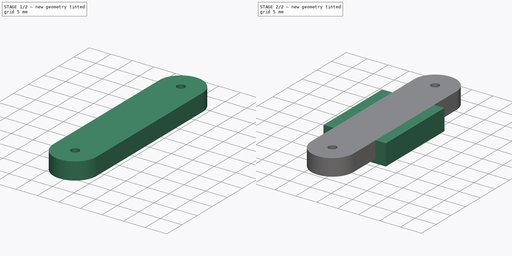
[diagram: build sequence overview — one tinted view per stage of 2, left to right]
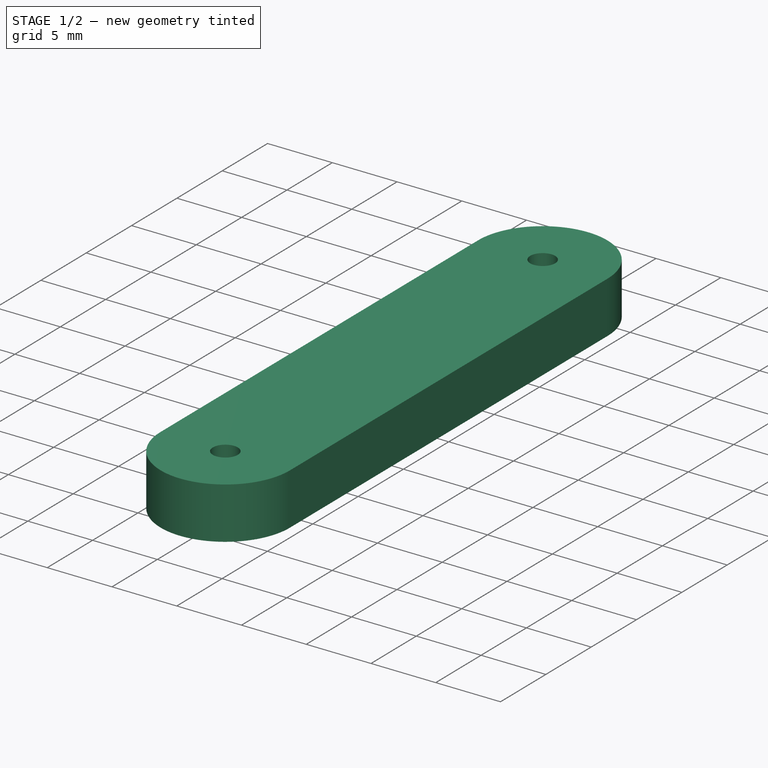
[diagram: stage 1 of 2 — iso view after this stage's code; geometry added in this stage tinted green]
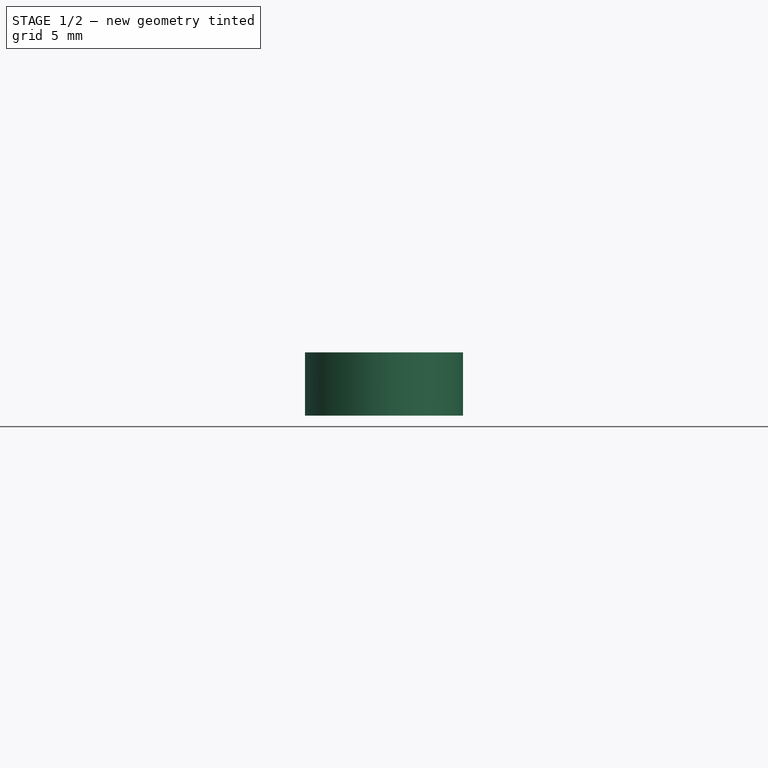
[diagram: stage 1 of 2 — front view after this stage's code; geometry added in this stage tinted green]
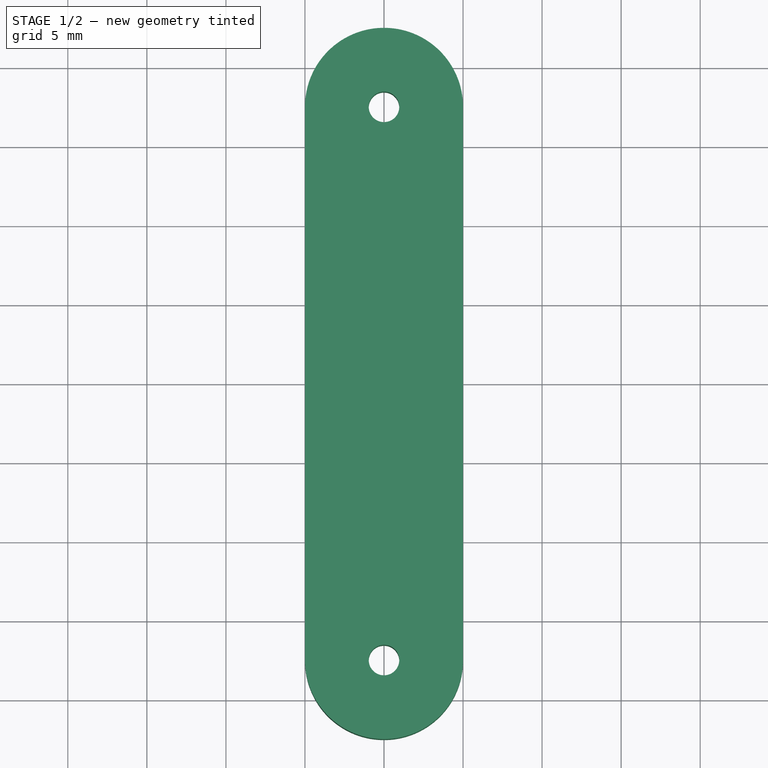
[diagram: stage 1 of 2 — top view after this stage's code; geometry added in this stage tinted green]
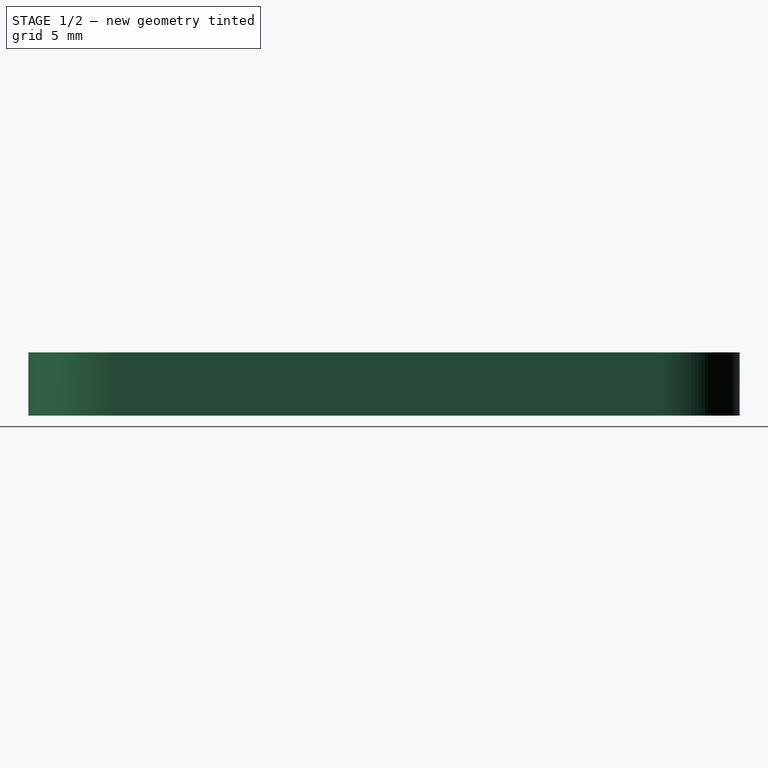
[diagram: stage 1 of 2 — right view after this stage's code; geometry added in this stage tinted green]
FCSTD DOCUMENT  (FreeCAD 1.0R39319 (Git))
Label: arm_for_servo_arm
License: All rights reserved
LicenseURL: https://en.wikipedia.org/wiki/All_rights_reserved
objects: Sketcher::SketchObject×2, PartDesign::Pad×2, PartDesign::Body×1
note: 11 computed .brp shape members not serialized (recipe doc carries the construction recipe); baked Part::Feature solids carry a one-line shape summary decoded from their .brp

FEATURE [Sketcher::SketchObject] Sketch001
  ArcFitTolerance = 1e-06
  AttachmentSupport = -> [XY_Plane]
  FullyConstrained = false
  MakeInternals = false
  MapMode = 5
  sketch-geometry (8):
    g0: ArcOfCircle CenterX=0 CenterY=-17.5 CenterZ=0 NormalX=0 NormalY=0 NormalZ=1 AngleXU=0 Radius=5 StartAngle=3.14159 EndAngle=6.28319
    g1: ArcOfCircle CenterX=0 CenterY=17.5 CenterZ=0 NormalX=0 NormalY=0 NormalZ=1 AngleXU=0 Radius=5 StartAngle=2.19388e-06 EndAngle=3.14159
    g2: LineSegment [constr] StartX=5 StartY=-17.5 StartZ=0 EndX=-2.5 EndY=-17.5 EndZ=0
    g3: Circle CenterX=0 CenterY=17.5 CenterZ=0 NormalX=0 NormalY=0 NormalZ=1 AngleXU=0 Radius=0.965047
    g4: Circle CenterX=0 CenterY=-17.5 CenterZ=0 NormalX=0 NormalY=0 NormalZ=1 AngleXU=0 Radius=0.965047
    g5: LineSegment StartX=-5 StartY=-17.5 StartZ=0 EndX=-5 EndY=17.5 EndZ=0
    g6: LineSegment StartX=5 StartY=-17.5 StartZ=0 EndX=5 EndY=0 EndZ=0
    g7: LineSegment StartX=5 StartY=0 StartZ=0 EndX=5 EndY=17.5 EndZ=0
  constraints (22):
    c: PointOnObject(g1,g-2)
    c: PointOnObject(g0,g-2)
    c: Equal(g1,g0)
    c: Diameter(g1) = 10
    c: Horizontal(g2)
    c: PointOnObject(g0,g2)
    c: Equal(g4,g3)
    c: Tangent(g5,g0) = 1.5708
    c: Coincident(g5,g1)
    c: Coincident(g6,g0)
    c: PointOnObject(g6,g-1)
    c: Vertical(g6)
    c: Coincident(g7,g6)
    c: Coincident(g7,g1)
    c: Equal(g6,g7)
    c: Diameter(g1) = 10
    c: Vertical(g7)
    c: Vertical(g5)
    c: Coincident(g0,g4)
    c: Coincident(g0,g2)
    c: Coincident(g3,g1)
    c: DistanceY(g5,g5) = 35
FEATURE [PartDesign::Pad] Pad
  Direction = (0,0,1)
  Length = 4
  Length2 = 10
  Profile = -> Sketch001
  ReferenceAxis = -> Sketch001 [N_Axis]
  Refine = true
  Suppressed = false
  Type = 0
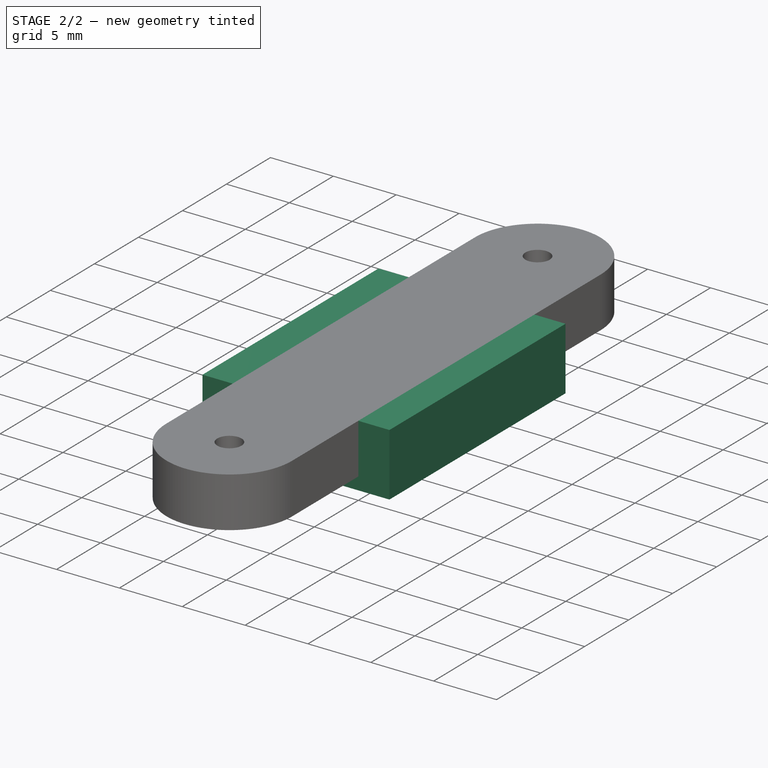
[diagram: stage 2 of 2 — iso view after this stage's code; geometry added in this stage tinted green]
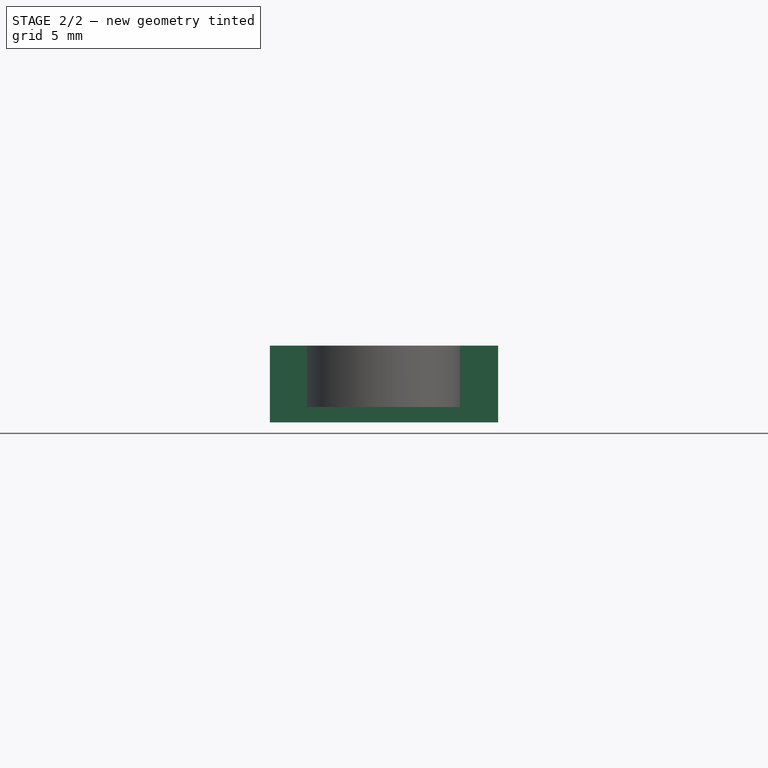
[diagram: stage 2 of 2 — front view after this stage's code; geometry added in this stage tinted green]
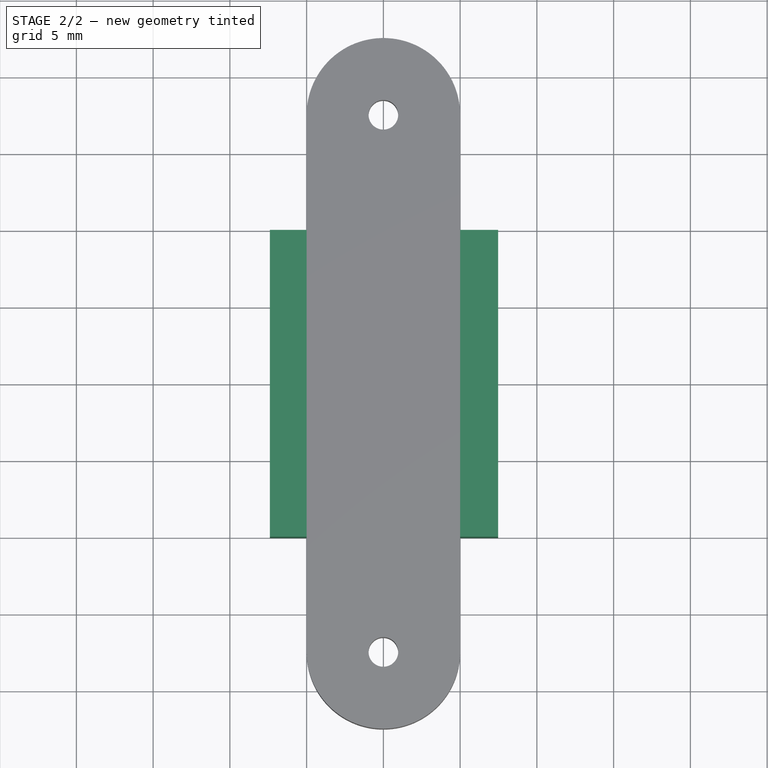
[diagram: stage 2 of 2 — top view after this stage's code; geometry added in this stage tinted green]
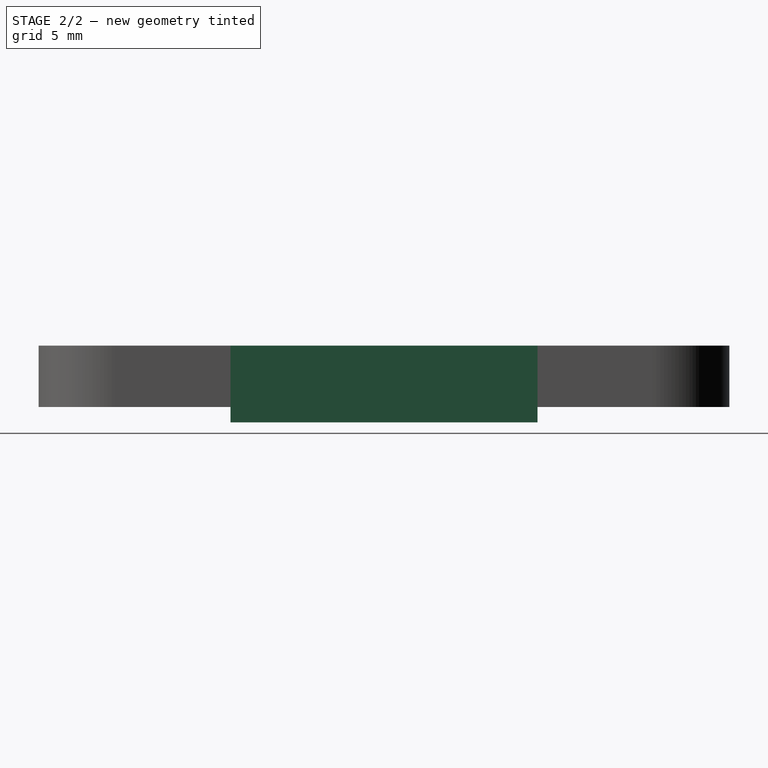
[diagram: stage 2 of 2 — right view after this stage's code; geometry added in this stage tinted green]
FEATURE [Sketcher::SketchObject] Sketch
  ArcFitTolerance = 1e-06
  AttachmentSupport = -> [Pad]
  FullyConstrained = false
  MakeInternals = false
  MapMode = 5
  Placement = pos=(0,0,4) rot=(0,0,1;0rad)
  sketch-geometry (6):
    g0: LineSegment StartX=-7.39312 StartY=10 StartZ=0 EndX=-7.39312 EndY=-10 EndZ=0
    g1: LineSegment StartX=-7.39312 StartY=-10 StartZ=0 EndX=7.4745 EndY=-10 EndZ=0
    g2: LineSegment StartX=7.4745 StartY=-10 StartZ=0 EndX=7.4745 EndY=10 EndZ=0
    g3: LineSegment StartX=7.4745 StartY=10 StartZ=0 EndX=-7.39312 EndY=10 EndZ=0
    g4: LineSegment [constr] StartX=9e-16 StartY=0 StartZ=0 EndX=7.4745 EndY=10 EndZ=0
    g5: LineSegment [constr] StartX=7.4745 StartY=-10 StartZ=0 EndX=9e-16 EndY=0 EndZ=0
  constraints (14):
    c: Coincident(g0,g1)
    c: Coincident(g1,g2)
    c: Coincident(g2,g3)
    c: Coincident(g3,g0)
    c: Vertical(g0)
    c: Vertical(g2)
    c: Horizontal(g1)
    c: Horizontal(g3)
    c: Coincident(g4,g-1)
    c: Coincident(g4,g2)
    c: Coincident(g5,g1)
    c: Coincident(g5,g4)
    c: Equal(g5,g4)
    c: DistanceY(g0,g0) = 20
FEATURE [PartDesign::Pad] Pad001
  BaseFeature = -> Pad
  Direction = (0,0,1)
  Length = 5
  Length2 = 10
  Profile = -> Sketch
  ReferenceAxis = -> Sketch [N_Axis]
  Refine = true
  Reversed = true
  Suppressed = false
  Type = 0
FEATURE [PartDesign::Body] Body
  AllowCompound = false
  Group = -> [Sketch001,Pad,Sketch,Pad001]
  Origin = -> Origin
  Tip = -> Pad001
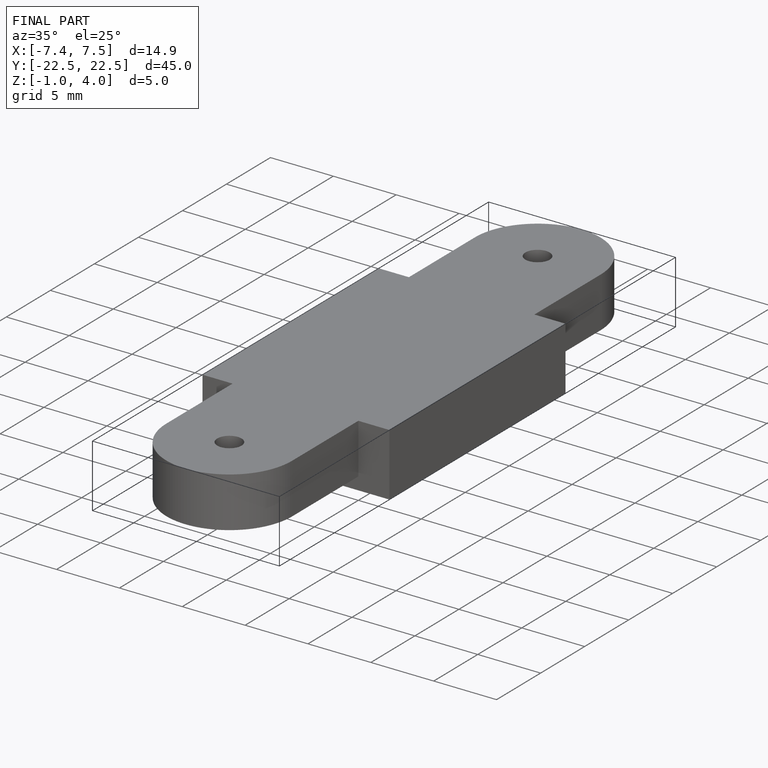
[diagram: finished part — iso view with bounding-box wireframe]
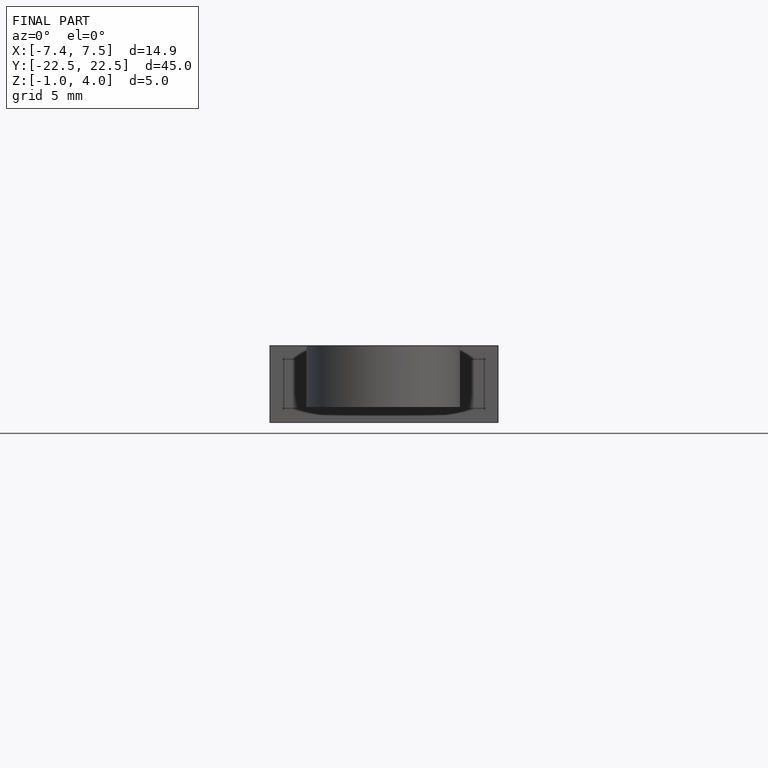
[diagram: finished part — front view with bounding-box wireframe]
